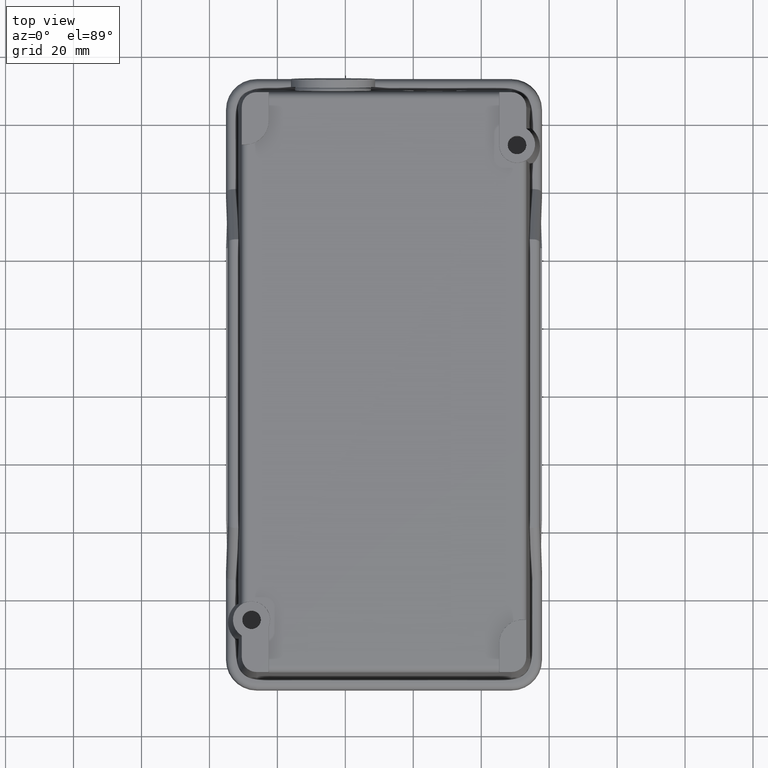
[diagram: clean part render]
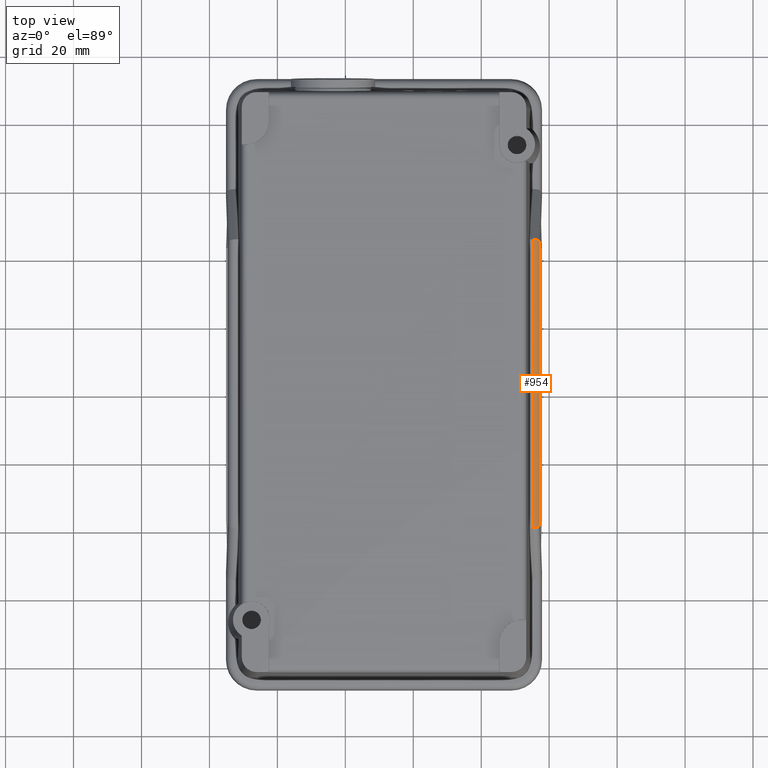
[diagram: same view with one face highlighted and labeled with its STEP entity id]
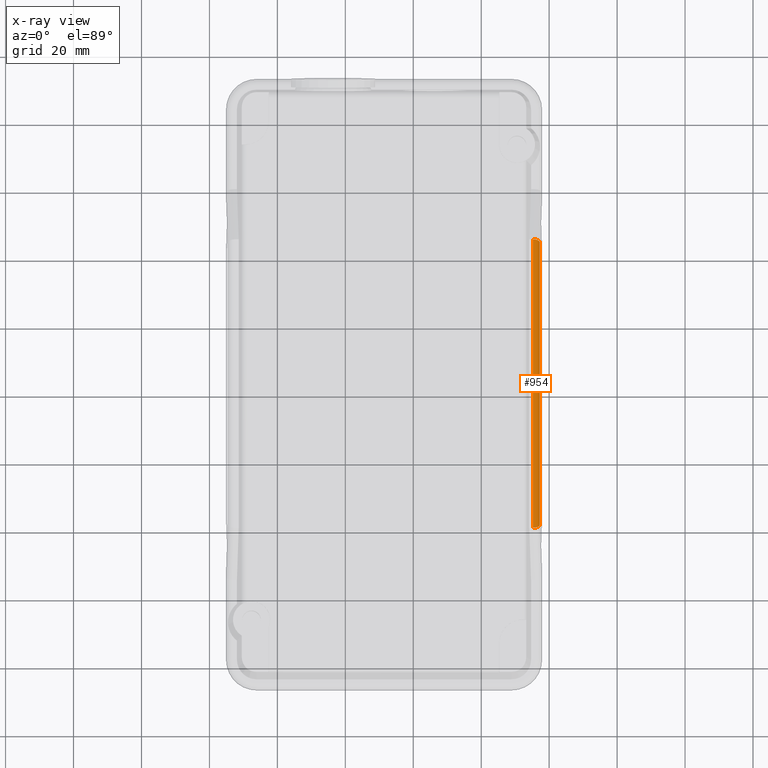
[diagram: x-ray of the same camera — body ghosted, the highlighted face saturated]
A machine part, top view. The second image highlights one B-rep face of the part: STEP entity #954.
The next image is the same camera in x-ray: the body ghosted, the highlighted face saturated — about 0% of this face is hidden behind the body in this view.
In plain terms, the highlighted cylindrical surface (edge-blend (fillet) strip) has radius 2 mm, axis along (0, -1, 0).
Its self-contained STEP definition (entity closure, byte-faithful):
#913=CARTESIAN_POINT('',(75.219833519464913,82.356946322317157,19.015587699999983));
#914=DIRECTION('',(0.0,-1.0,0.0));
#915=DIRECTION('',(0.694658370459000,0.0,0.719339800338648));
#916=AXIS2_PLACEMENT_3D('',#913,#914,#915);
#917=CYLINDRICAL_SURFACE('',#916,2.000000000000000);
#918=CARTESIAN_POINT('',(75.219833519464913,105.584720487304650,21.015587699999976));
#919=VERTEX_POINT('',#918);
#920=CARTESIAN_POINT('',(75.219833519464913,20.614453531568255,21.015587699999987));
#921=VERTEX_POINT('',#920);
#922=CARTESIAN_POINT('',(75.219833519464913,105.584720487304650,21.015587699999976));
#923=DIRECTION('',(0.0,-1.0,0.0));
#924=VECTOR('',#923,84.970266955736392);
#925=LINE('',#922,#924);
#926=EDGE_CURVE('',#919,#921,#925,.T.);
#927=ORIENTED_EDGE('',*,*,#926,.T.);
#928=CARTESIAN_POINT('',(77.218615173503110,21.442732759944043,19.085386693404985));
#929=VERTEX_POINT('',#928);
#930=CARTESIAN_POINT('',(75.219833519464913,21.442732759944001,19.015587699999983));
#931=DIRECTION('',(-0.013360370907446,0.923821223934369,0.382590965258746));
#932=DIRECTION('',(0.032240895758447,0.382824171400401,-0.923258457005561));
#933=AXIS2_PLACEMENT_3D('',#930,#931,#932);
#934=ELLIPSE('',#933,2.164921034702365,2.000000000000000);
#935=EDGE_CURVE('',#921,#929,#934,.T.);
#936=ORIENTED_EDGE('',*,*,#935,.T.);
#937=CARTESIAN_POINT('',(77.218615173503110,104.756441258928850,19.085386693404981));
#938=VERTEX_POINT('',#937);
#939=CARTESIAN_POINT('',(77.218615173503110,21.442732759944043,19.085386693404985));
#940=DIRECTION('',(0.0,1.0,0.0));
#941=VECTOR('',#940,83.313708498984795);
#942=LINE('',#939,#941);
#943=EDGE_CURVE('',#929,#938,#942,.T.);
#944=ORIENTED_EDGE('',*,*,#943,.T.);
#945=CARTESIAN_POINT('',(75.219833519464913,104.756441258928990,19.015587699999983));
#946=DIRECTION('',(-0.013360370907490,-0.923821223934381,0.382590965258716));
#947=DIRECTION('',(-0.032240895758555,0.382824171400373,0.923258457005569));
#948=AXIS2_PLACEMENT_3D('',#945,#946,#947);
#949=ELLIPSE('',#948,2.164921034702337,2.0);
#950=EDGE_CURVE('',#938,#919,#949,.T.);
#951=ORIENTED_EDGE('',*,*,#950,.T.);
#952=EDGE_LOOP('',(#927,#936,#944,#951));
#953=FACE_OUTER_BOUND('',#952,.T.);
#954=ADVANCED_FACE('',(#953),#917,.T.);